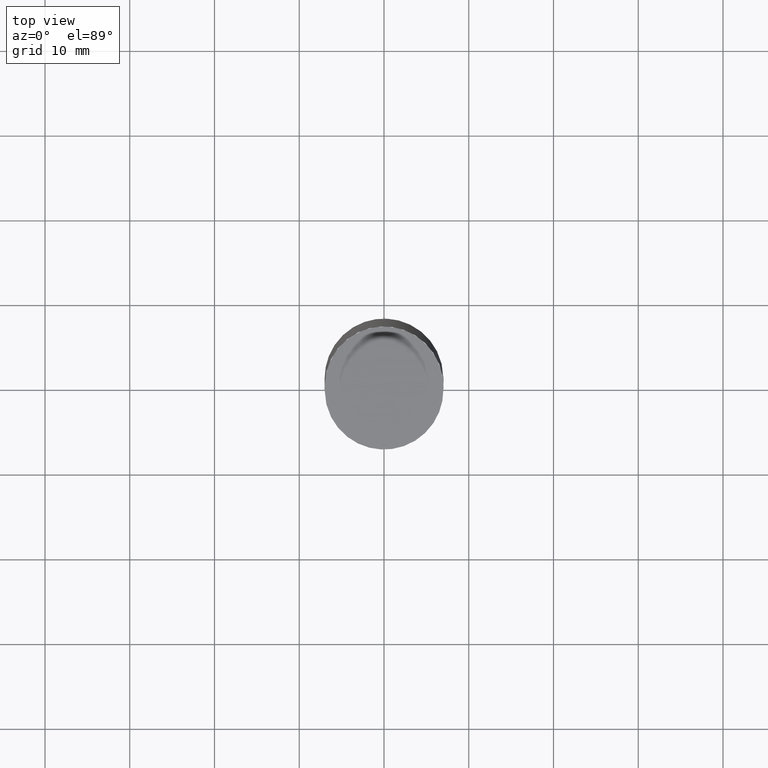
[diagram: clean part render]
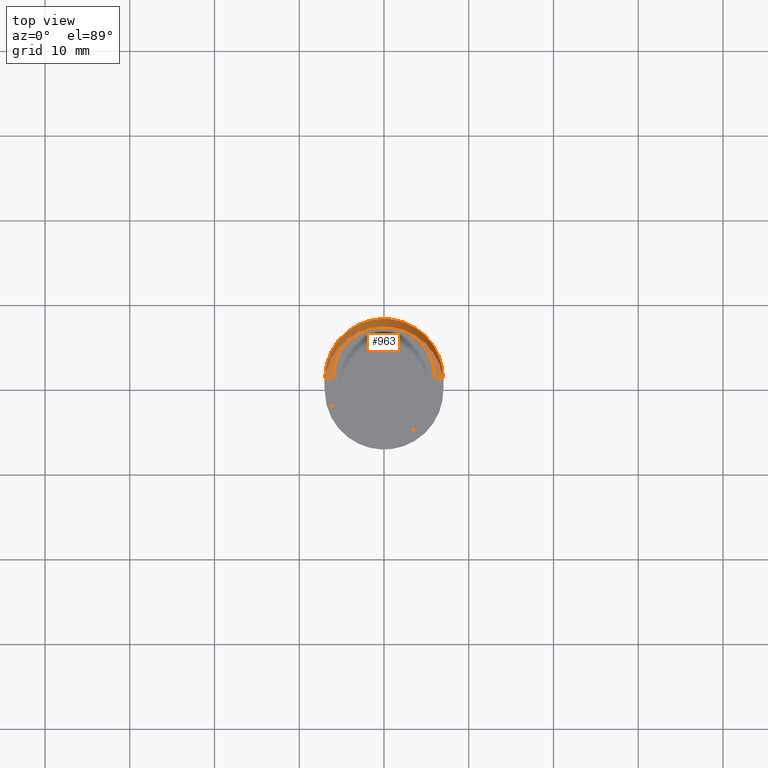
[diagram: same view with one face highlighted and labeled with its STEP entity id]
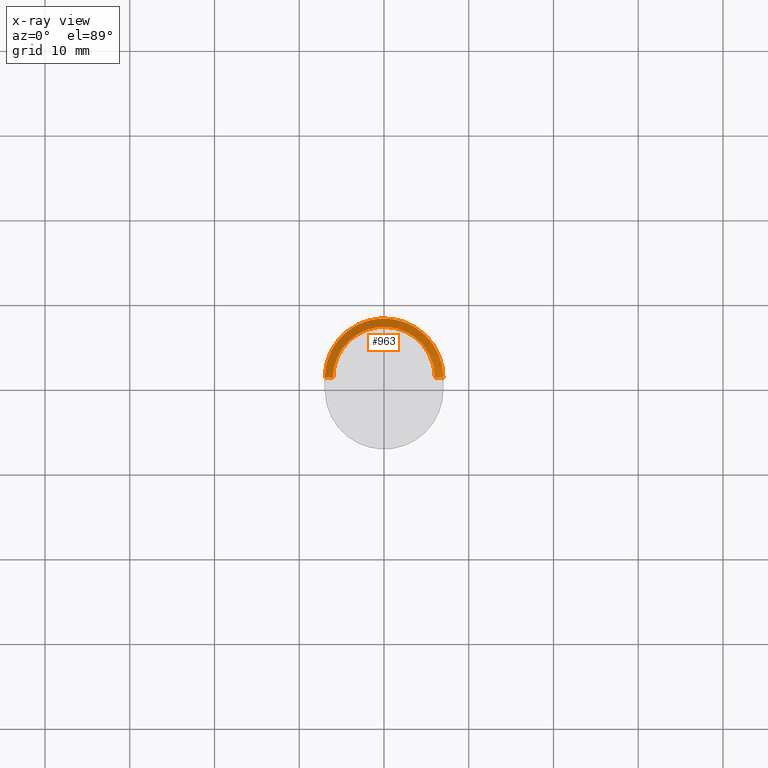
[diagram: x-ray of the same camera — body ghosted, the highlighted face saturated]
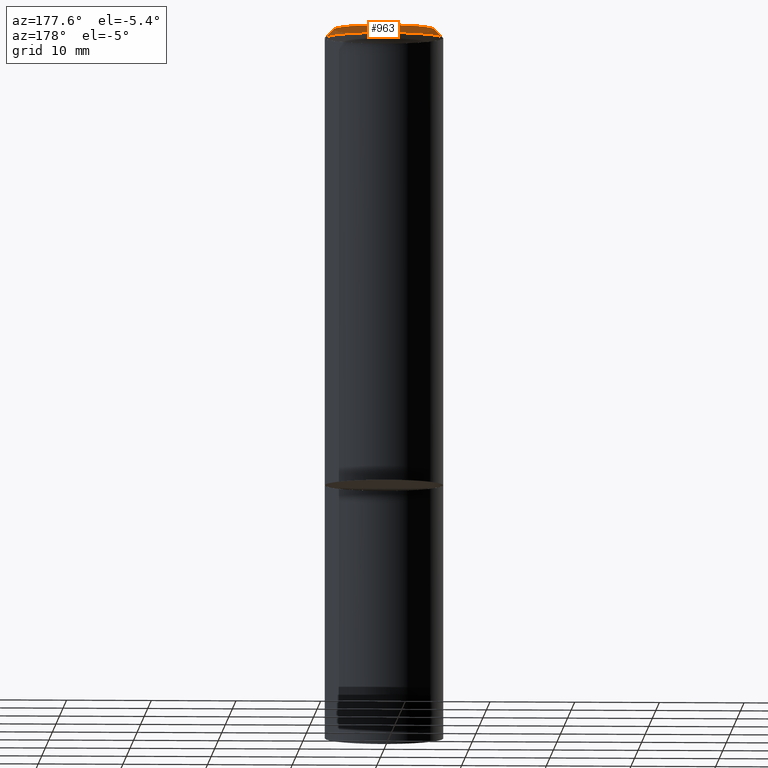
[diagram: same view with one face highlighted and labeled with its STEP entity id]
A machine part, top view. The second image highlights one B-rep face of the part: STEP entity #963.
The next image is the same camera in x-ray: the body ghosted, the highlighted face saturated — about 0% of this face is hidden behind the body in this view.
A second angle (auxiliary view) of the same face is appended — the face is thin or edge-on in the first view.
In plain terms, the highlighted face is a freeform B-spline surface patch.
Its self-contained STEP definition (entity closure, byte-faithful):
#778=CARTESIAN_POINT('',(7.0,0.0,53.0));
#779=CARTESIAN_POINT('',(7.0,7.0,53.0));
#780=CARTESIAN_POINT('',(0.0,7.0,53.0));
#781=CARTESIAN_POINT('',(-7.0,7.0,53.0));
#782=CARTESIAN_POINT('',(-7.0,0.0,53.0));
#783=CARTESIAN_POINT('',(6.0,0.0,54.0));
#784=CARTESIAN_POINT('',(6.0,6.0,54.0));
#785=CARTESIAN_POINT('',(0.0,6.0,54.0));
#786=CARTESIAN_POINT('',(-6.0,6.0,54.0));
#787=CARTESIAN_POINT('',(-6.0,0.0,54.0));
#944=(
BOUNDED_SURFACE()
B_SPLINE_SURFACE(1,2,(
(#778,#779,#780,#781,#782),
(#783,#784,#785,#786,#787)
), .UNSPECIFIED.,.F.,.F.,.F.)
B_SPLINE_SURFACE_WITH_KNOTS((2,2),(3,2,3),(
0.0,1.0),(
0.0,0.5,1.0), .UNSPECIFIED.)
GEOMETRIC_REPRESENTATION_ITEM()
RATIONAL_B_SPLINE_SURFACE(((1.0,0.707106781187,1.0,0.707106781187,1.0),
(1.0,0.707106781187,1.0,0.707106781187,1.0)
))
REPRESENTATION_ITEM('')
SURFACE()
);
#945=(
BOUNDED_CURVE()
B_SPLINE_CURVE(2,(#782,#781,#780,#779,#778),.UNSPECIFIED.,.F.,.F.)
B_SPLINE_CURVE_WITH_KNOTS((3,2,3),
(0.0,0.5,1.0),.UNSPECIFIED.)
CURVE()
GEOMETRIC_REPRESENTATION_ITEM()
RATIONAL_B_SPLINE_CURVE((1.0,0.707106781187,1.0,0.707106781187,1.0))
REPRESENTATION_ITEM('')
);
#946=(
BOUNDED_CURVE()
B_SPLINE_CURVE(1,(#778,#783),.UNSPECIFIED.,.F.,.F.)
B_SPLINE_CURVE_WITH_KNOTS((2,2),
(0.0,1.0),.UNSPECIFIED.)
CURVE()
GEOMETRIC_REPRESENTATION_ITEM()
RATIONAL_B_SPLINE_CURVE((1.0,1.0))
REPRESENTATION_ITEM('')
);
#947=(
BOUNDED_CURVE()
B_SPLINE_CURVE(2,(#783,#784,#785,#786,#787),.UNSPECIFIED.,.F.,.F.)
B_SPLINE_CURVE_WITH_KNOTS((3,2,3),
(0.0,0.5,1.0),.UNSPECIFIED.)
CURVE()
GEOMETRIC_REPRESENTATION_ITEM()
RATIONAL_B_SPLINE_CURVE((1.0,0.707106781187,1.0,0.707106781187,1.0))
REPRESENTATION_ITEM('')
);
#948=(
BOUNDED_CURVE()
B_SPLINE_CURVE(1,(#787,#782),.UNSPECIFIED.,.F.,.F.)
B_SPLINE_CURVE_WITH_KNOTS((2,2),
(0.0,1.0),.UNSPECIFIED.)
CURVE()
GEOMETRIC_REPRESENTATION_ITEM()
RATIONAL_B_SPLINE_CURVE((1.0,1.0))
REPRESENTATION_ITEM('')
);
#949=VERTEX_POINT('',#778);
#950=VERTEX_POINT('',#782);
#951=VERTEX_POINT('',#783);
#952=VERTEX_POINT('',#787);
#953=EDGE_CURVE('',#950,#949,#945,.T.);
#954=EDGE_CURVE('',#949,#951,#946,.T.);
#955=EDGE_CURVE('',#951,#952,#947,.T.);
#956=EDGE_CURVE('',#952,#950,#948,.T.);
#957=ORIENTED_EDGE('',*,*,#953,.T.);
#958=ORIENTED_EDGE('',*,*,#954,.T.);
#959=ORIENTED_EDGE('',*,*,#955,.T.);
#960=ORIENTED_EDGE('',*,*,#956,.T.);
#961=EDGE_LOOP('',(#957,#958,#959,#960));
#962=FACE_OUTER_BOUND('',#961,.T.);
#963=ADVANCED_FACE('',(#962),#944,.T.);